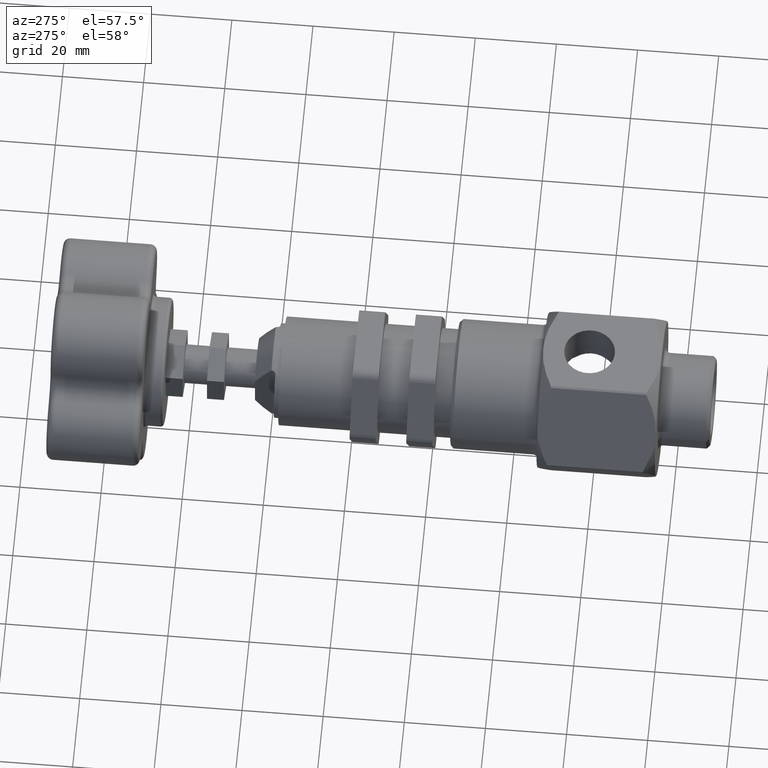
[diagram: clean part render]
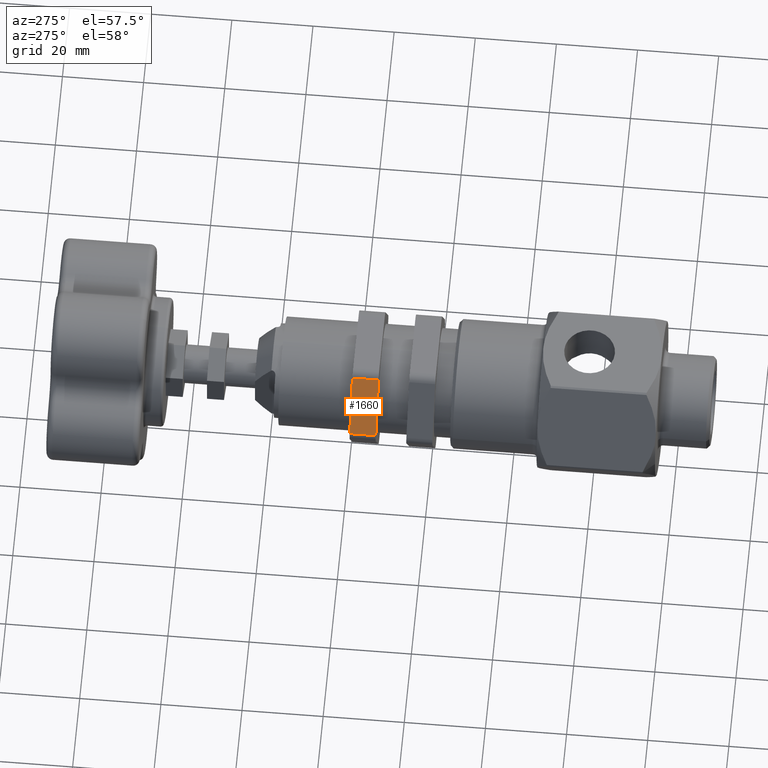
[diagram: same view with one face highlighted and labeled with its STEP entity id]
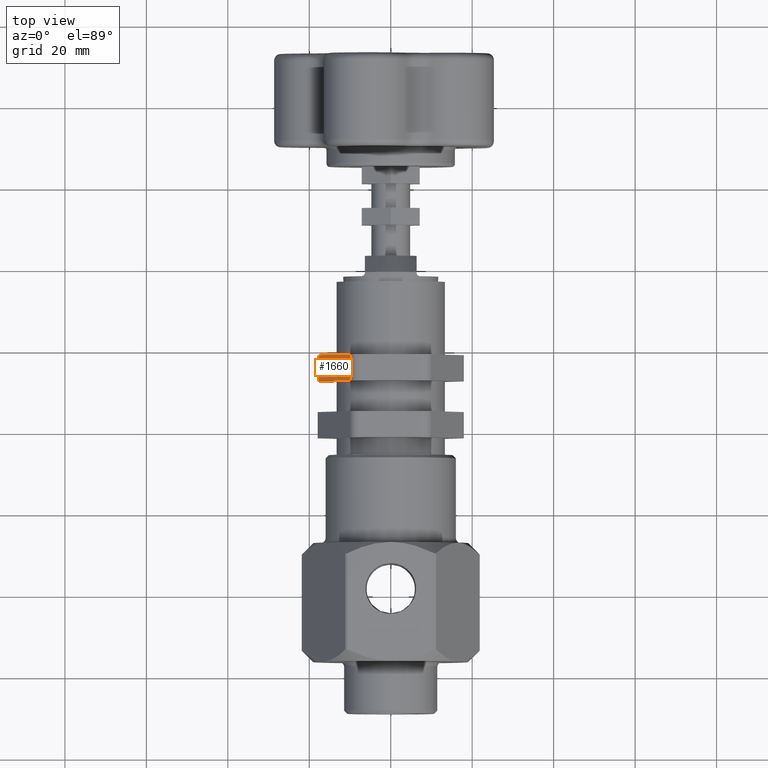
[diagram: same view with one face highlighted and labeled with its STEP entity id]
A machine part, auxiliary view. The second image highlights one B-rep face of the part: STEP entity #1660.
A second angle (top view) of the same face is appended — the face is thin or edge-on in the first view.
In plain terms, the highlighted planar face has unit normal (0.866, 0, -0.5).
Its self-contained STEP definition (entity closure, byte-faithful):
#30 = CARTESIAN_POINT ( 'NONE',  ( -0.6928203230275508100, 1.532110034006686900, 0.04999999999999973200 ) ) ;
#93 = VECTOR ( 'NONE', #7486, 39.37007874015748100 ) ;
#535 = EDGE_CURVE ( 'NONE', #2824, #1135, #7449, .T. ) ;
#759 = VERTEX_POINT ( 'NONE', #2801 ) ;
#847 = ORIENTED_EDGE ( 'NONE', *, *, #4874, .T. ) ;
#1074 = EDGE_LOOP ( 'NONE', ( #847, #1462, #5061, #6322 ) ) ;
#1135 = VERTEX_POINT ( 'NONE', #6509 ) ;
#1406 = CARTESIAN_POINT ( 'NONE',  ( -0.7216878364870321600, 1.279110034006686800, -2.775070850530282900E-016 ) ) ;
#1462 = ORIENTED_EDGE ( 'NONE', *, *, #7652, .T. ) ;
#1660 = ADVANCED_FACE ( 'NONE', ( #2948 ), #2842, .F. ) ;
#1898 = CARTESIAN_POINT ( 'NONE',  ( -0.3897114317029975500, 1.532110034006686900, 0.5750000000000000700 ) ) ;
#2134 = VECTOR ( 'NONE', #3245, 39.37007874015748100 ) ;
#2372 = VECTOR ( 'NONE', #5129, 39.37007874015748100 ) ;
#2801 = CARTESIAN_POINT ( 'NONE',  ( -0.6928203230275508100, 1.279110034006686800, 0.04999999999999973200 ) ) ;
#2824 = VERTEX_POINT ( 'NONE', #30 ) ;
#2842 = PLANE ( 'NONE',  #3243 ) ;
#2948 = FACE_OUTER_BOUND ( 'NONE', #1074, .T. ) ;
#3243 = AXIS2_PLACEMENT_3D ( 'NONE', #6417, #4563, #4540 ) ;
#3245 = DIRECTION ( 'NONE',  ( 0.4999999999999994400, 0.0000000000000000000, 0.8660254037844389300 ) ) ;
#3742 = EDGE_CURVE ( 'NONE', #2824, #759, #5170, .T. ) ;
#4408 = DIRECTION ( 'NONE',  ( -0.0000000000000000000, 1.000000000000000000, -0.0000000000000000000 ) ) ;
#4540 = DIRECTION ( 'NONE',  ( -0.4999999999999994400, 0.0000000000000000000, -0.8660254037844390400 ) ) ;
#4563 = DIRECTION ( 'NONE',  ( 0.8660254037844390400, 0.0000000000000000000, -0.4999999999999994400 ) ) ;
#4874 = EDGE_CURVE ( 'NONE', #759, #7113, #7200, .T. ) ;
#5061 = ORIENTED_EDGE ( 'NONE', *, *, #535, .F. ) ;
#5120 = CARTESIAN_POINT ( 'NONE',  ( -0.3897114317029974900, 1.279110034006686800, 0.5750000000000002900 ) ) ;
#5129 = DIRECTION ( 'NONE',  ( 0.4999999999999994400, 0.0000000000000000000, 0.8660254037844389300 ) ) ;
#5170 = LINE ( 'NONE', #7462, #93 ) ;
#6322 = ORIENTED_EDGE ( 'NONE', *, *, #3742, .T. ) ;
#6417 = CARTESIAN_POINT ( 'NONE',  ( -0.7216878364870321600, 1.532110034006686900, -2.775070850530282900E-016 ) ) ;
#6509 = CARTESIAN_POINT ( 'NONE',  ( -0.3897114317029974900, 1.532110034006686900, 0.5750000000000002900 ) ) ;
#6527 = VECTOR ( 'NONE', #4408, 39.37007874015748100 ) ;
#7113 = VERTEX_POINT ( 'NONE', #5120 ) ;
#7127 = CARTESIAN_POINT ( 'NONE',  ( -0.7216878364870321600, 1.532110034006686900, -2.775070850530282900E-016 ) ) ;
#7200 = LINE ( 'NONE', #1406, #2134 ) ;
#7449 = LINE ( 'NONE', #7127, #2372 ) ;
#7462 = CARTESIAN_POINT ( 'NONE',  ( -0.6928203230275508100, 1.532110034006686900, 0.04999999999999973200 ) ) ;
#7486 = DIRECTION ( 'NONE',  ( 0.0000000000000000000, -1.000000000000000000, 0.0000000000000000000 ) ) ;
#7652 = EDGE_CURVE ( 'NONE', #7113, #1135, #8205, .T. ) ;
#8205 = LINE ( 'NONE', #1898, #6527 ) ;